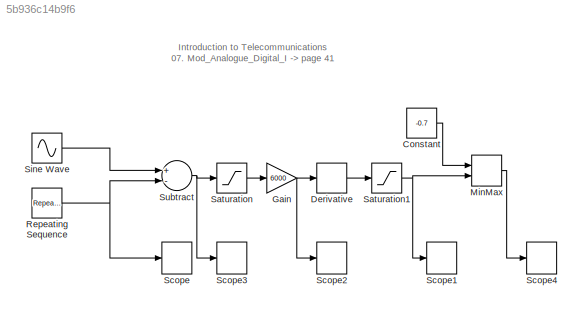
MODEL slx_5b936c14b9f6
KIND model
CONFIG AbsTol = auto
CONFIG FixedStep = auto
CONFIG MaxStep = auto
CONFIG MinStep = auto
CONFIG RelTol = 1e-3
CONFIG SampleTimeConstraint = Unconstrained
CONFIG Solver = ode45
CONFIG SolverMode = Auto
CONFIG SolverName = ode45
CONFIG StartTime = 0.0
CONFIG StopTime = 1000.0
BLOCK [Constant] Constant
  Value = -0.7
BLOCK [Derivative] Derivative
BLOCK [Gain] Gain
  Gain = 6000
  OutDataTypeStr = Inherit: Inherit via internal rule
  ParamDataTypeStr = Inherit: Inherit via internal rule
  SaturateOnIntegerOverflow = off
BLOCK [MinMax] MinMax
  Function = max
  InputSameDT = off
  Inputs = 2
  Ports = [2, 1]
  SaturateOnIntegerOverflow = off
BLOCK [Reference] Repeating Sequence  REF=simulink/Sources/Repeating
Sequence
  Ports = [0, 1]
  SourceBlock = simulink/Sources/Repeating\nSequence
  SourceType = Repeating table
  rep_seq_t = [0 25]
  rep_seq_y = [-2 2]
BLOCK [Saturate] Saturation
  InputPortMap = u0
  LowerLimit = -0.0005
  Ports = [1, 1]
  UpperLimit = 0.0005
BLOCK [Saturate] Saturation1
  InputPortMap = u0
  LowerLimit = -3
  Ports = [1, 1]
  UpperLimit = 3
BLOCK [TimeScope] Scope
  NumInputPorts = 1
  Ports = [1]
  ScopeSpecificationString = Simulink.scopes.TimeScopeBlockCfg('CurrentConfiguration', extmgr.ConfigurationSet(extmgr.Configuration('Core','General UI',true),extmgr.Configuration('Core','Source UI',true),extmgr.Configuration('Sources','WiredSimulink',true,'DataLoggingLimitDataPoints',true,'DataLoggingDecimation','1','DataLoggingDecimateData',true,'DataLoggingSaveFormat','Array'),extmgr.Configuration('Visuals','Time Domain',tr...<+1612ch>
BLOCK [TimeScope] Scope1
  NumInputPorts = 1
  Ports = [1]
  ScopeSpecificationString = Simulink.scopes.TimeScopeBlockCfg('CurrentConfiguration', extmgr.ConfigurationSet(extmgr.Configuration('Core','General UI',true),extmgr.Configuration('Core','Source UI',true),extmgr.Configuration('Sources','WiredSimulink',true,'DataLoggingLimitDataPoints',true,'DataLoggingDecimation','1','DataLoggingDecimateData',true,'DataLoggingSaveFormat','Array','DataLoggingVariableName','ScopeData1'),extmgr.C...<+1644ch>
BLOCK [TimeScope] Scope2
  NumInputPorts = 1
  Ports = [1]
  ScopeSpecificationString = Simulink.scopes.TimeScopeBlockCfg('CurrentConfiguration', extmgr.ConfigurationSet(extmgr.Configuration('Core','General UI',true),extmgr.Configuration('Core','Source UI',true),extmgr.Configuration('Sources','WiredSimulink',true,'DataLoggingLimitDataPoints',true,'DataLoggingDecimation','1','DataLoggingDecimateData',true,'DataLoggingSaveFormat','Array','DataLoggingVariableName','ScopeData2'),extmgr.C...<+1663ch>
BLOCK [TimeScope] Scope3
  NumInputPorts = 1
  Ports = [1]
  ScopeSpecificationString = Simulink.scopes.TimeScopeBlockCfg('CurrentConfiguration', extmgr.ConfigurationSet(extmgr.Configuration('Core','General UI',true),extmgr.Configuration('Core','Source UI',true),extmgr.Configuration('Sources','WiredSimulink',true,'DataLoggingLimitDataPoints',true,'DataLoggingDecimation','1','DataLoggingDecimateData',true,'DataLoggingSaveFormat','Array','DataLoggingVariableName','ScopeData3'),extmgr.C...<+1666ch>
BLOCK [TimeScope] Scope4
  NumInputPorts = 1
  Ports = [1]
  ScopeSpecificationString = Simulink.scopes.TimeScopeBlockCfg('CurrentConfiguration', extmgr.ConfigurationSet(extmgr.Configuration('Core','General UI',true),extmgr.Configuration('Core','Source UI',true),extmgr.Configuration('Sources','WiredSimulink',true,'DataLoggingLimitDataPoints',true,'DataLoggingDecimation','1','DataLoggingDecimateData',true,'DataLoggingSaveFormat','Array','DataLoggingVariableName','ScopeData4'),extmgr.C...<+1666ch>
BLOCK [Sin] Sine Wave
  Frequency = 0.01
  Ports = [0, 1]
  SampleTime = 0
BLOCK [Sum] Subtract
  InputSameDT = off
  Inputs = +-
  OutDataTypeStr = Inherit: Inherit via internal rule
  Ports = [2, 1]
  SaturateOnIntegerOverflow = off
ANNOTATION (root): Introduction to Telecommunications 07. Mod_Analogue_Digital_I -> page 41
LINE Constant:1 -> MinMax:1
LINE Derivative:1 -> Saturation1:1
NET Gain:1 -> Derivative:1, Scope2:1
LINE MinMax:1 -> Scope4:1
NET Repeating Sequence:1 -> Scope:1, Subtract:2
NET Saturation1:1 -> MinMax:2, Scope1:1
LINE Saturation:1 -> Gain:1
LINE Sine Wave:1 -> Subtract:1
NET Subtract:1 -> Saturation:1, Scope3:1
note: NET lines group one-source signal fan-out (src -> all destinations, sorted); 1:1 wires keep LINE
